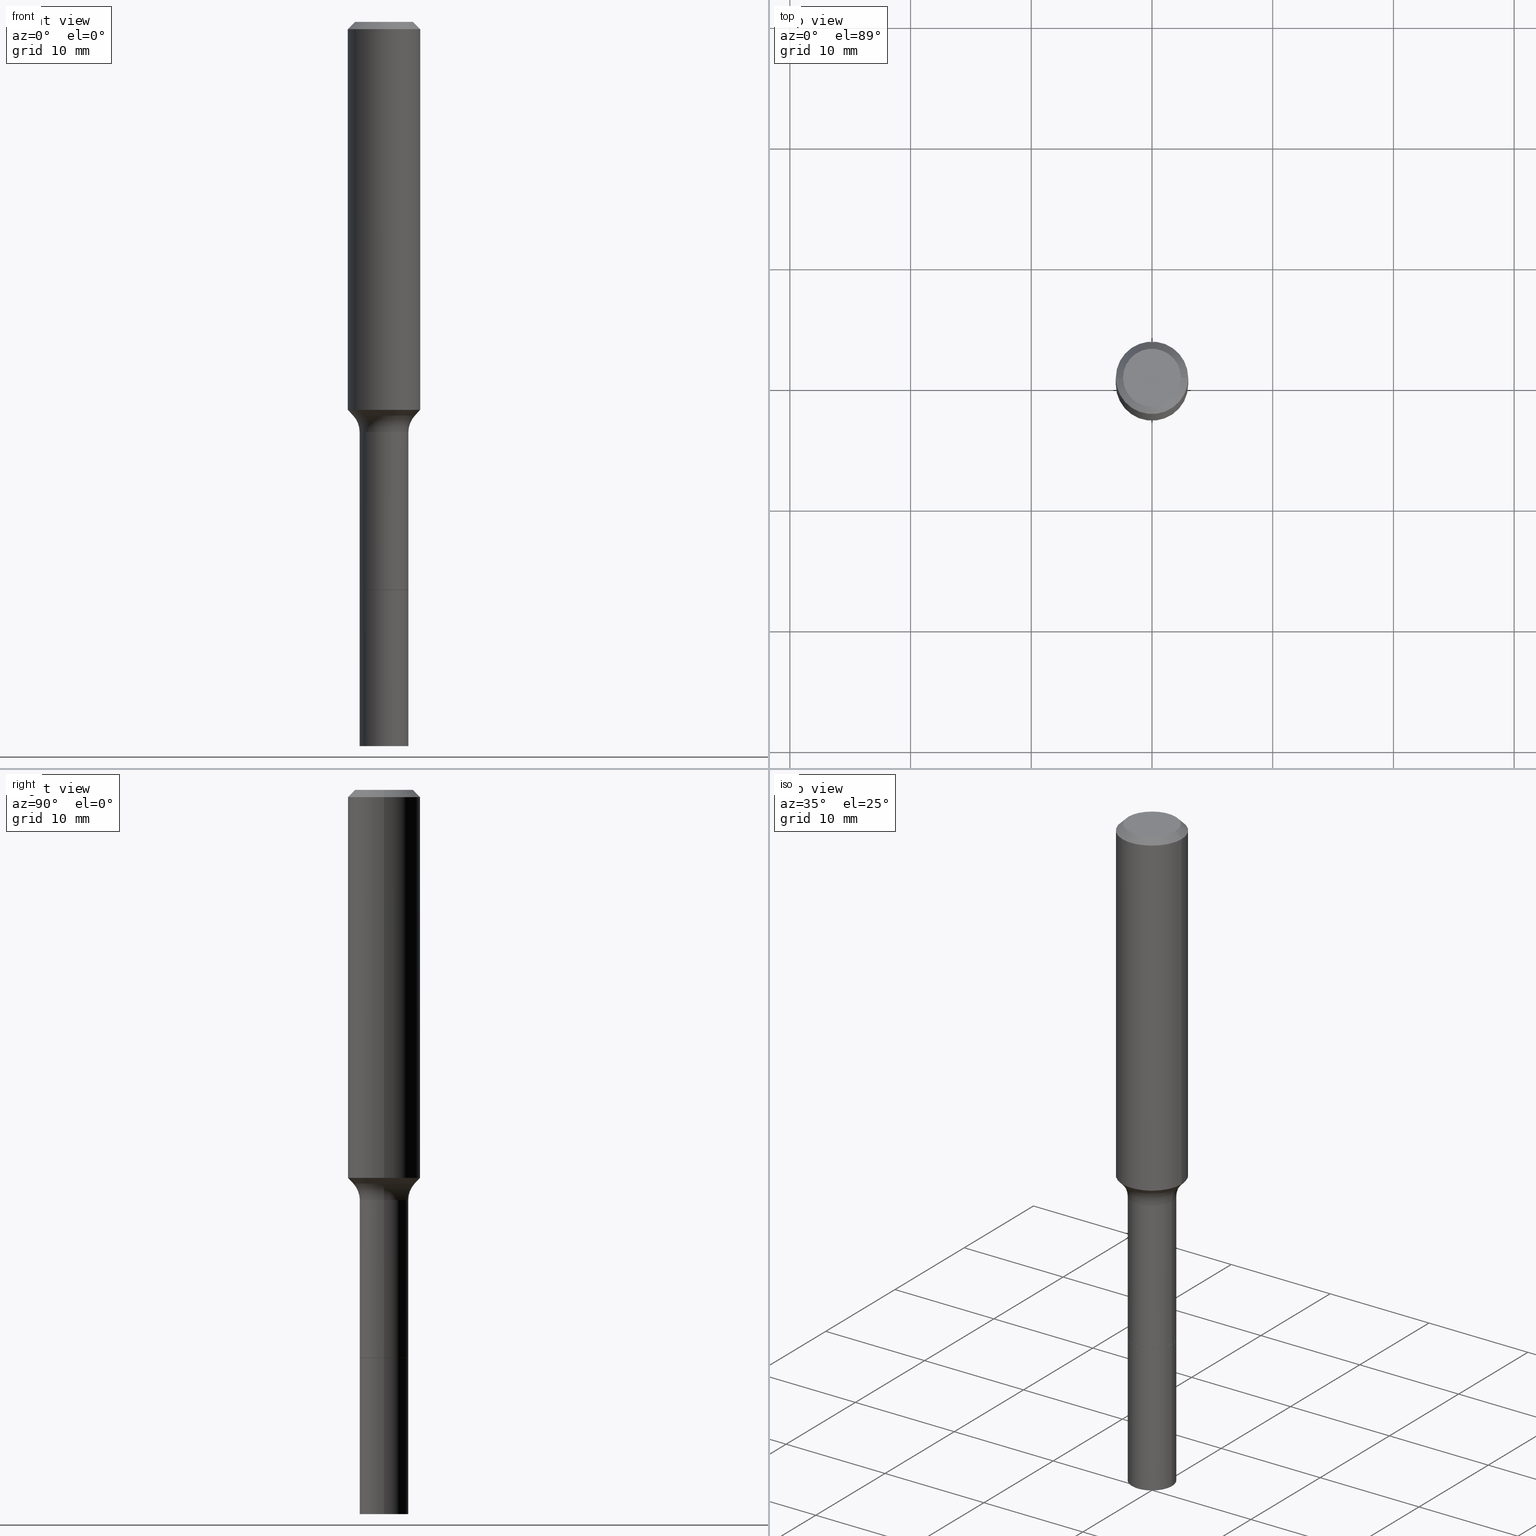
[diagram: canonical four-view strip — front | top / right | iso, engineering-drawing reading convention]
A machine part, canonical four-view strip (front | top / right | iso — engineering-drawing reading convention). The complete STEP part file that produces these views, byte-faithful:
ISO-10303-21;
HEADER;
FILE_DESCRIPTION (( 'STEP AP203' ),
    '1' );
FILE_NAME ('58809.STEP',
    '2025-04-01T15:25:06',
    ( '' ),
    ( '' ),
    'SwSTEP 2.0',
    'SolidWorks 2024',
    '' );
FILE_SCHEMA (( 'CONFIG_CONTROL_DESIGN' ));
ENDSEC;

DATA;
#1 = CARTESIAN_POINT ( 'NONE',  ( -0.07900000000000000078, -5.902943747380684142E-15, -1.852200000000000069 ) ) ;
#2 = EDGE_CURVE ( 'NONE', #471, #511, #509, .T. ) ;
#3 = DIRECTION ( 'NONE',  ( -2.445468806185136597E-29, 3.491481338843145583E-15, 1.000000000000000000 ) ) ;
#4 = SECURITY_CLASSIFICATION ( '', '', #297 ) ;
#5 = CIRCLE ( 'NONE', #202, 0.07950000000000000122 ) ;
#6 = DIRECTION ( 'NONE',  ( -2.445468806185136597E-29, 3.491481338843145583E-15, 1.000000000000000000 ) ) ;
#7 = EDGE_CURVE ( 'NONE', #187, #479, #465, .T. ) ;
#8 = DIRECTION ( 'NONE',  ( -1.000000000000000000, 7.105427357601001859E-15, 0.000000000000000000 ) ) ;
#9 = CARTESIAN_POINT ( 'NONE',  ( 0.07950000000000000122, -7.022067268681332845E-15, -1.852200000000000069 ) ) ;
#10 = DIRECTION ( 'NONE',  ( -2.445468806185136597E-29, 3.491481338843145583E-15, 1.000000000000000000 ) ) ;
#11 = PERSON_AND_ORGANIZATION ( #500, #110 ) ;
#12 = DIRECTION ( 'NONE',  ( 1.000000000000000000, -6.982962677686270655E-15, 0.000000000000000000 ) ) ;
#13 = CARTESIAN_POINT ( 'NONE',  ( 3.272526356436949336E-29, -4.672300327639896745E-15, -1.338200000000000056 ) ) ;
#14 = APPROVAL_DATE_TIME ( #53, #148 ) ;
#15 = AXIS2_PLACEMENT_3D ( 'NONE', #123, #3, #165 ) ;
#16 = AXIS2_PLACEMENT_3D ( 'NONE', #478, #122, #83 ) ;
#17 = LINE ( 'NONE', #455, #264 ) ;
#18 = EDGE_LOOP ( 'NONE', ( #112, #318, #60, #378 ) ) ;
#19 = CC_DESIGN_PERSON_AND_ORGANIZATION_ASSIGNMENT ( #254, #93, ( #77 ) ) ;
#20 = ORIENTED_EDGE ( 'NONE', *, *, #262, .T. ) ;
#21 = AXIS2_PLACEMENT_3D ( 'NONE', #399, #42, #402 ) ;
#22 = CIRCLE ( 'NONE', #425, 0.07950000000000000122 ) ;
#23 = DIRECTION ( 'NONE',  ( 0.000000000000000000, 0.000000000000000000, 1.000000000000000000 ) ) ;
#24 = VERTEX_POINT ( 'NONE', #9 ) ;
#25 = ADVANCED_FACE ( 'NONE', ( #130 ), #396, .T. ) ;
#26 = DIRECTION ( 'NONE',  ( -2.445468806185136597E-29, 3.491481338843145583E-15, 1.000000000000000000 ) ) ;
#27 = CALENDAR_DATE ( 2025, 1, 4 ) ;
#28 = CARTESIAN_POINT ( 'NONE',  ( 0.1180999999999999966, -9.071566814582237199E-16, -0.02362000000000014435 ) ) ;
#29 = ORIENTED_EDGE ( 'NONE', *, *, #388, .T. ) ;
#30 = CARTESIAN_POINT ( 'NONE',  ( 3.772893820736570314E-46, -5.386692455541008845E-32, -1.542810037565835988E-17 ) ) ;
#31 = AXIS2_PLACEMENT_3D ( 'NONE', #472, #71, #116 ) ;
#32 = ORIENTED_EDGE ( 'NONE', *, *, #388, .F. ) ;
#33 = CYLINDRICAL_SURFACE ( 'NONE', #319, 0.07950000000000007061 ) ;
#34 = APPROVAL_PERSON_ORGANIZATION ( #451, #164, #446 ) ;
#35 = ADVANCED_FACE ( 'NONE', ( #43 ), #88, .T. ) ;
#36 = ORIENTED_EDGE ( 'NONE', *, *, #189, .T. ) ;
#37 = ORIENTED_EDGE ( 'NONE', *, *, #98, .F. ) ;
#38 = CYLINDRICAL_SURFACE ( 'NONE', #66, 0.1181000000000000660 ) ;
#39 = VERTEX_POINT ( 'NONE', #1 ) ;
#40 = DIRECTION ( 'NONE',  ( 1.000000000000000000, -6.982962677686254089E-15, 0.000000000000000000 ) ) ;
#41 = ADVANCED_FACE ( 'NONE', ( #251 ), #514, .T. ) ;
#42 = DIRECTION ( 'NONE',  ( -2.438088387897960049E-29, 3.491481338843145188E-15, 1.000000000000000000 ) ) ;
#43 = FACE_OUTER_BOUND ( 'NONE', #456, .T. ) ;
#44 = ADVANCED_FACE ( 'NONE', ( #167 ), #287, .F. ) ;
#45 = FACE_OUTER_BOUND ( 'NONE', #18, .T. ) ;
#46 = CIRCLE ( 'NONE', #243, 0.1180999999999999966 ) ;
#47 = AXIS2_PLACEMENT_3D ( 'NONE', #453, #220, #336 ) ;
#48 = DIRECTION ( 'NONE',  ( 1.000000000000000000, -6.982962677686267499E-15, 4.876176775795936353E-29 ) ) ;
#49 = MANIFOLD_SOLID_BREP ( 'Body-Move/Copy2[1]', #489 ) ;
#50 = DIRECTION ( 'NONE',  ( -1.000000000000000000, 6.982962677686266711E-15, 0.000000000000000000 ) ) ;
#51 = CALENDAR_DATE ( 2025, 1, 4 ) ;
#52 = DIRECTION ( 'NONE',  ( -6.982962677686266711E-15, -1.000000000000000000, 3.491481338843145583E-15 ) ) ;
#53 = DATE_AND_TIME ( #292, #365 ) ;
#54 = CARTESIAN_POINT ( 'NONE',  ( -0.07950000000000007061, -5.902040260875994445E-15, -1.852200000000000069 ) ) ;
#55 = ADVANCED_FACE ( 'NONE', ( #45 ), #208, .T. ) ;
#56 = AXIS2_PLACEMENT_3D ( 'NONE', #288, #172, #95 ) ;
#57 = APPLICATION_CONTEXT ( 'configuration controlled 3d designs of mechanical parts and assemblies' ) ;
#58 = AXIS2_PLACEMENT_3D ( 'NONE', #216, #298, #256 ) ;
#59 = DIRECTION ( 'NONE',  ( 1.000000000000000000, -6.982962677686264344E-15, 0.000000000000000000 ) ) ;
#60 = ORIENTED_EDGE ( 'NONE', *, *, #179, .T. ) ;
#61 = ADVANCED_FACE ( 'NONE', ( #370 ), #163, .T. ) ;
#62 = PRODUCT_DEFINITION ( 'UNKNOWN', '', #77, #72 ) ;
#63 = PERSON_AND_ORGANIZATION ( #500, #110 ) ;
#64 = CARTESIAN_POINT ( 'NONE',  ( 4.529497322816109909E-29, -6.466921735805274989E-15, -1.852200000000000069 ) ) ;
#65 = AXIS2_PLACEMENT_3D ( 'NONE', #364, #6, #335 ) ;
#66 = AXIS2_PLACEMENT_3D ( 'NONE', #199, #515, #161 ) ;
#67 =( NAMED_UNIT ( * ) SI_UNIT ( $, .STERADIAN. ) SOLID_ANGLE_UNIT ( ) );
#68 = ORIENTED_EDGE ( 'NONE', *, *, #81, .T. ) ;
#69 = CARTESIAN_POINT ( 'NONE',  ( 5.776686413970529753E-29, -8.247577218615279626E-15, -2.362200000000000077 ) ) ;
#70 = EDGE_LOOP ( 'NONE', ( #517, #340, #513, #315 ) ) ;
#71 = DIRECTION ( 'NONE',  ( -2.445468806185136597E-29, 3.491481338843145583E-15, 1.000000000000000000 ) ) ;
#72 = DESIGN_CONTEXT ( 'detailed design', #57, 'design' ) ;
#73 = VERTEX_POINT ( 'NONE', #441 ) ;
#74 = DIRECTION ( 'NONE',  ( -2.445468806185136597E-29, 3.491481338843145583E-15, 1.000000000000000000 ) ) ;
#75 = EDGE_CURVE ( 'NONE', #421, #384, #158, .T. ) ;
#76 = ORIENTED_EDGE ( 'NONE', *, *, #196, .F. ) ;
#77 = PRODUCT_DEFINITION_FORMATION_WITH_SPECIFIED_SOURCE ( 'ANY', '', #375, .NOT_KNOWN. ) ;
#78 = CARTESIAN_POINT ( 'NONE',  ( 0.07950000000000000122, -7.020321528011911342E-15, -1.851700000000000124 ) ) ;
#79 = ORIENTED_EDGE ( 'NONE', *, *, #410, .F. ) ;
#80 = FACE_OUTER_BOUND ( 'NONE', #283, .T. ) ;
#81 = EDGE_CURVE ( 'NONE', #305, #238, #46, .T. ) ;
#82 = VERTEX_POINT ( 'NONE', #90 ) ;
#83 = DIRECTION ( 'NONE',  ( 1.000000000000000000, -6.982962677686267499E-15, 4.876176775795936353E-29 ) ) ;
#84 = DIRECTION ( 'NONE',  ( -2.445468806185136597E-29, 3.491481338843145583E-15, 1.000000000000000000 ) ) ;
#85 = AXIS2_PLACEMENT_3D ( 'NONE', #146, #430, #108 ) ;
#86 = DIRECTION ( 'NONE',  ( -2.445468806185136597E-29, 3.491481338843145583E-15, 1.000000000000000000 ) ) ;
#87 = APPLICATION_CONTEXT ( 'configuration controlled 3d designs of mechanical parts and assemblies' ) ;
#88 = CYLINDRICAL_SURFACE ( 'NONE', #250, 0.07950000000000007061 ) ;
#89 = EDGE_CURVE ( 'NONE', #238, #305, #404, .T. ) ;
#90 = CARTESIAN_POINT ( 'NONE',  ( -0.09447999999999998066, 7.009847083995354710E-16, -3.085620075132147757E-17 ) ) ;
#91 = DIRECTION ( 'NONE',  ( -2.445468806185136597E-29, 3.491481338843145583E-15, 1.000000000000000000 ) ) ;
#92 = AXIS2_PLACEMENT_3D ( 'NONE', #30, #387, #463 ) ;
#93 = PERSON_AND_ORGANIZATION_ROLE ( 'creator' ) ;
#94 = AXIS2_PLACEMENT_3D ( 'NONE', #368, #91, #213 ) ;
#95 = DIRECTION ( 'NONE',  ( 1.000000000000000000, -6.982962677686266711E-15, 0.000000000000000000 ) ) ;
#96 = DIRECTION ( 'NONE',  ( 1.000000000000000000, -6.982962677686272233E-15, 0.000000000000000000 ) ) ;
#97 = SHAPE_DEFINITION_REPRESENTATION ( #178, #277 ) ;
#98 = EDGE_CURVE ( 'NONE', #73, #39, #439, .T. ) ;
#99 = CARTESIAN_POINT ( 'NONE',  ( 3.094236346750236032E-29, -4.417749445555900568E-15, -1.265293729743851792 ) ) ;
#100 = LENGTH_MEASURE_WITH_UNIT ( LENGTH_MEASURE( 0.02539999999999999897 ), #258 );
#101 = ORIENTED_EDGE ( 'NONE', *, *, #222, .F. ) ;
#102 = CC_DESIGN_SECURITY_CLASSIFICATION ( #4, ( #77 ) ) ;
#103 = CARTESIAN_POINT ( 'NONE',  ( 0.1180999999999999966, -8.926936027602933910E-16, -0.02362000000000014435 ) ) ;
#104 = EDGE_CURVE ( 'NONE', #421, #426, #409, .T. ) ;
#105 = CALENDAR_DATE ( 2025, 1, 4 ) ;
#106 = LINE ( 'NONE', #467, #505 ) ;
#107 = ORIENTED_EDGE ( 'NONE', *, *, #89, .F. ) ;
#108 = DIRECTION ( 'NONE',  ( -1.000000000000000000, 6.982962677686265922E-15, -4.876176775795935793E-29 ) ) ;
#109 = AXIS2_PLACEMENT_3D ( 'NONE', #367, #400, #12 ) ;
#110 = ORGANIZATION ( 'UNSPECIFIED', 'UNSPECIFIED', '' ) ;
#111 = DIRECTION ( 'NONE',  ( 1.000000000000000000, -6.982962677686270655E-15, 0.000000000000000000 ) ) ;
#112 = ORIENTED_EDGE ( 'NONE', *, *, #2, .F. ) ;
#113 = EDGE_CURVE ( 'NONE', #384, #435, #117, .T. ) ;
#114 = CARTESIAN_POINT ( 'NONE',  ( 0.1181000000000000660, -8.246878922347485584E-16, 5.758764772215003944E-30 ) ) ;
#115 = ORIENTED_EDGE ( 'NONE', *, *, #473, .F. ) ;
#116 = DIRECTION ( 'NONE',  ( 1.000000000000000000, -6.982962677686270655E-15, 0.000000000000000000 ) ) ;
#117 = CIRCLE ( 'NONE', #423, 0.07999999999999996003 ) ;
#118 = ORIENTED_EDGE ( 'NONE', *, *, #262, .F. ) ;
#119 = DIRECTION ( 'NONE',  ( 1.000000000000000000, -6.982962677686271444E-15, 0.000000000000000000 ) ) ;
#120 = EDGE_CURVE ( 'NONE', #39, #73, #218, .T. ) ;
#121 = EDGE_LOOP ( 'NONE', ( #323, #394, #68, #118 ) ) ;
#122 = DIRECTION ( 'NONE',  ( -2.445468806185136597E-29, 3.491481338843145583E-15, 1.000000000000000000 ) ) ;
#123 = CARTESIAN_POINT ( 'NONE',  ( 4.529497322816109909E-29, -6.466921735805274989E-15, -1.852200000000000069 ) ) ;
#124 = DIRECTION ( 'NONE',  ( 1.000000000000000000, -6.982962677686266711E-15, 4.876176775795936353E-29 ) ) ;
#125 = APPROVAL_PERSON_ORGANIZATION ( #369, #148, #257 ) ;
#126 = DIRECTION ( 'NONE',  ( -2.445468806185136877E-29, 3.491481338843145188E-15, 1.000000000000000000 ) ) ;
#127 = EDGE_CURVE ( 'NONE', #73, #240, #291, .T. ) ;
#128 = CARTESIAN_POINT ( 'NONE',  ( 0.1594999999999999196, -5.786082874730855465E-15, -1.338200000000000056 ) ) ;
#129 = DIRECTION ( 'NONE',  ( 1.000000000000000000, -6.982962677686272233E-15, 0.000000000000000000 ) ) ;
#130 = FACE_OUTER_BOUND ( 'NONE', #121, .T. ) ;
#131 = DIRECTION ( 'NONE',  ( -2.445468806185136877E-29, 3.491481338843145188E-15, 1.000000000000000000 ) ) ;
#132 = PERSON_AND_ORGANIZATION ( #500, #110 ) ;
#133 = CIRCLE ( 'NONE', #184, 0.07950000000000014000 ) ;
#134 = ADVANCED_FACE ( 'NONE', ( #331 ), #350, .F. ) ;
#135 = FACE_OUTER_BOUND ( 'NONE', #70, .T. ) ;
#136 = DATE_TIME_ROLE ( 'creation_date' ) ;
#137 = CARTESIAN_POINT ( 'NONE',  ( 4.528274588413018229E-29, -6.465175995135853485E-15, -1.851700000000000124 ) ) ;
#138 = EDGE_LOOP ( 'NONE', ( #37, #477 ) ) ;
#139 = CARTESIAN_POINT ( 'NONE',  ( 3.272526356436949336E-29, -4.672300327639896745E-15, -1.338200000000000056 ) ) ;
#140 = CIRCLE ( 'NONE', #94, 0.07950000000000000122 ) ;
#141 = APPROVAL_DATE_TIME ( #186, #512 ) ;
#142 = ORIENTED_EDGE ( 'NONE', *, *, #196, .T. ) ;
#143 = LINE ( 'NONE', #424, #200 ) ;
#144 = MECHANICAL_CONTEXT ( 'NONE', #87, 'mechanical' ) ;
#145 = EDGE_LOOP ( 'NONE', ( #393, #284, #436, #101 ) ) ;
#146 = CARTESIAN_POINT ( 'NONE',  ( 4.529497322816109909E-29, -6.466921735805274989E-15, -1.852200000000000069 ) ) ;
#147 = CARTESIAN_POINT ( 'NONE',  ( -0.07950000000000000122, -6.792368002280996764E-15, -1.852200000000000069 ) ) ;
#148 = APPROVAL ( #329, 'UNSPECIFIED' ) ;
#149 = AXIS2_PLACEMENT_3D ( 'NONE', #499, #156, #119 ) ;
#150 = ORIENTED_EDGE ( 'NONE', *, *, #290, .F. ) ;
#151 = FACE_OUTER_BOUND ( 'NONE', #145, .T. ) ;
#152 = CARTESIAN_POINT ( 'NONE',  ( -0.07949999999999995959, 5.648814749292793606E-16, -3.910553396752648025E-30 ) ) ;
#153 = CARTESIAN_POINT ( 'NONE',  ( 0.1181000000000001493, -5.242437337790650408E-15, -1.265293729743851792 ) ) ;
#154 = DIRECTION ( 'NONE',  ( 1.000000000000000000, -6.982962677686269077E-15, 4.883557194083114022E-29 ) ) ;
#155 = ORIENTED_EDGE ( 'NONE', *, *, #206, .T. ) ;
#156 = DIRECTION ( 'NONE',  ( -2.445468806185136597E-29, 3.491481338843145583E-15, 1.000000000000000000 ) ) ;
#157 = ADVANCED_FACE ( 'NONE', ( #327 ), #204, .F. ) ;
#158 = CIRCLE ( 'NONE', #109, 0.1009917038704663955 ) ;
#159 = ORIENTED_EDGE ( 'NONE', *, *, #290, .T. ) ;
#160 = CIRCLE ( 'NONE', #320, 0.09447999999999998066 ) ;
#161 = DIRECTION ( 'NONE',  ( 1.000000000000000000, -6.982962677686266711E-15, 4.876176775795936353E-29 ) ) ;
#162 = EDGE_LOOP ( 'NONE', ( #357, #185, #142, #107 ) ) ;
#163 = CYLINDRICAL_SURFACE ( 'NONE', #482, 0.1181000000000000660 ) ;
#164 = APPROVAL ( #412, 'UNSPECIFIED' ) ;
#165 = DIRECTION ( 'NONE',  ( 1.000000000000000000, -6.982962677686271444E-15, 0.000000000000000000 ) ) ;
#166 = CONICAL_SURFACE ( 'NONE', #282, 0.1009917038704663955, 0.7504915783575621946 ) ;
#167 = FACE_OUTER_BOUND ( 'NONE', #138, .T. ) ;
#168 = DIRECTION ( 'NONE',  ( 1.000000000000000000, -6.982962677686267499E-15, 4.875432709231658792E-29 ) ) ;
#169 = DATE_TIME_ROLE ( 'classification_date' ) ;
#170 = CARTESIAN_POINT ( 'NONE',  ( 5.776686413970529753E-29, -8.247577218615279626E-15, -2.362200000000000077 ) ) ;
#171 = DIRECTION ( 'NONE',  ( 1.000000000000000000, -6.982962677686265922E-15, 0.000000000000000000 ) ) ;
#172 = DIRECTION ( 'NONE',  ( -2.445468806185136597E-29, 3.491481338843145583E-15, 1.000000000000000000 ) ) ;
#173 = DIRECTION ( 'NONE',  ( 0.7071067811865460184, -7.319954787623251312E-15, -0.7071067811865490160 ) ) ;
#174 = CALENDAR_DATE ( 2025, 1, 4 ) ;
#175 = CIRCLE ( 'NONE', #47, 0.1181000000000001493 ) ;
#176 = DIRECTION ( 'NONE',  ( -2.445468806185136597E-29, 3.491481338843145583E-15, 1.000000000000000000 ) ) ;
#177 = ORIENTED_EDGE ( 'NONE', *, *, #75, .F. ) ;
#178 = PRODUCT_DEFINITION_SHAPE ( 'NONE', 'NONE',  #62 ) ;
#179 = EDGE_CURVE ( 'NONE', #240, #435, #143, .T. ) ;
#180 = DIRECTION ( 'NONE',  ( 1.000000000000000000, 0.000000000000000000, 0.000000000000000000 ) ) ;
#181 = ORIENTED_EDGE ( 'NONE', *, *, #464, .T. ) ;
#182 = VECTOR ( 'NONE', #126, 39.37007874015748143 ) ;
#183 = DIRECTION ( 'NONE',  ( 1.000000000000000000, -6.982962677686267499E-15, 4.875432709231658792E-29 ) ) ;
#184 = AXIS2_PLACEMENT_3D ( 'NONE', #242, #395, #40 ) ;
#185 = ORIENTED_EDGE ( 'NONE', *, *, #493, .T. ) ;
#186 = DATE_AND_TIME ( #27, #397 ) ;
#187 = VERTEX_POINT ( 'NONE', #346 ) ;
#188 = LINE ( 'NONE', #502, #260 ) ;
#189 = EDGE_CURVE ( 'NONE', #24, #309, #358, .T. ) ;
#190 = ORIENTED_EDGE ( 'NONE', *, *, #222, .T. ) ;
#191 = DIRECTION ( 'NONE',  ( -2.445468806185136877E-29, 3.491481338843145188E-15, 1.000000000000000000 ) ) ;
#192 = CLOSED_SHELL ( 'NONE', ( #503, #25, #344, #300, #316, #363, #55, #134, #41, #61, #427, #157, #44, #330 ) ) ;
#193 = AXIS2_PLACEMENT_3D ( 'NONE', #209, #452, #50 ) ;
#194 = ORIENTED_EDGE ( 'NONE', *, *, #127, .T. ) ;
#195 = DIRECTION ( 'NONE',  ( 1.000000000000000000, -6.982962677686265922E-15, 0.000000000000000000 ) ) ;
#196 = EDGE_CURVE ( 'NONE', #270, #305, #276, .T. ) ;
#197 = ORIENTED_EDGE ( 'NONE', *, *, #480, .T. ) ;
#198 = ORIENTED_EDGE ( 'NONE', *, *, #113, .T. ) ;
#199 = CARTESIAN_POINT ( 'NONE',  ( 0.000000000000000000, 0.000000000000000000, 0.000000000000000000 ) ) ;
#200 = VECTOR ( 'NONE', #191, 39.37007874015748143 ) ;
#201 = ORIENTED_EDGE ( 'NONE', *, *, #104, .F. ) ;
#202 = AXIS2_PLACEMENT_3D ( 'NONE', #341, #10, #171 ) ;
#203 = CYLINDRICAL_SURFACE ( 'NONE', #16, 0.07949999999999995959 ) ;
#204 = PLANE ( 'NONE',  #92 ) ;
#205 = CARTESIAN_POINT ( 'NONE',  ( 4.529497322816109909E-29, -6.466921735805274989E-15, -1.852200000000000069 ) ) ;
#206 = EDGE_CURVE ( 'NONE', #426, #238, #460, .T. ) ;
#207 = DIRECTION ( 'NONE',  ( -2.445468806185136597E-29, 3.491481338843145583E-15, 1.000000000000000000 ) ) ;
#208 = CYLINDRICAL_SURFACE ( 'NONE', #271, 0.07949999999999995959 ) ;
#209 = CARTESIAN_POINT ( 'NONE',  ( 5.776197320209328408E-31, -8.246878922347560526E-17, -0.02362000000000014435 ) ) ;
#210 = CC_DESIGN_APPROVAL ( #164, ( #4 ) ) ;
#211 = DIRECTION ( 'NONE',  ( 1.000000000000000000, -6.982962677686254089E-15, 0.000000000000000000 ) ) ;
#212 = ADVANCED_FACE ( 'NONE', ( #428 ), #390, .F. ) ;
#213 = DIRECTION ( 'NONE',  ( 1.000000000000000000, -6.982962677686265922E-15, 0.000000000000000000 ) ) ;
#214 = DATE_AND_TIME ( #51, #417 ) ;
#215 = DIRECTION ( 'NONE',  ( -2.445468806185136597E-29, 3.491481338843145583E-15, 1.000000000000000000 ) ) ;
#216 = CARTESIAN_POINT ( 'NONE',  ( 4.529497322816109909E-29, -6.466921735805274989E-15, -1.852200000000000069 ) ) ;
#217 = PERSON_AND_ORGANIZATION_ROLE ( 'classification_officer' ) ;
#218 = CIRCLE ( 'NONE', #15, 0.07900000000000000078 ) ;
#219 = AXIS2_PLACEMENT_3D ( 'NONE', #99, #176, #59 ) ;
#220 = DIRECTION ( 'NONE',  ( -2.445468806185136597E-29, 3.491481338843145583E-15, 1.000000000000000000 ) ) ;
#221 = EDGE_LOOP ( 'NONE', ( #177, #29, #232, #360 ) ) ;
#222 = EDGE_CURVE ( 'NONE', #479, #24, #106, .T. ) ;
#223 = PERSON_AND_ORGANIZATION_ROLE ( 'creator' ) ;
#224 = ORIENTED_EDGE ( 'NONE', *, *, #401, .T. ) ;
#225 = AXIS2_PLACEMENT_3D ( 'NONE', #170, #86, #211 ) ;
#226 = DIRECTION ( 'NONE',  ( -0.7071067811866199593, 7.493145998870616062E-15, 0.7071067811864750752 ) ) ;
#227 =( GEOMETRIC_REPRESENTATION_CONTEXT ( 3 ) GLOBAL_UNCERTAINTY_ASSIGNED_CONTEXT ( ( #285 ) ) GLOBAL_UNIT_ASSIGNED_CONTEXT ( ( #374, #403, #67 ) ) REPRESENTATION_CONTEXT ( 'NONE', 'WORKASPACE' ) );
#228 = PERSON_AND_ORGANIZATION ( #500, #110 ) ;
#229 = ORIENTED_EDGE ( 'NONE', *, *, #377, .F. ) ;
#230 = ADVANCED_FACE ( 'NONE', ( #151 ), #33, .T. ) ;
#231 = DIRECTION ( 'NONE',  ( -1.000000000000000000, 6.982962677686265922E-15, -4.876176775795935793E-29 ) ) ;
#232 = ORIENTED_EDGE ( 'NONE', *, *, #518, .T. ) ;
#233 = DIRECTION ( 'NONE',  ( -2.445468806185136597E-29, 3.491481338843145583E-15, 1.000000000000000000 ) ) ;
#234 = EDGE_LOOP ( 'NONE', ( #115, #389, #20, #466 ) ) ;
#235 = CARTESIAN_POINT ( 'NONE',  ( -0.1181000000000000660, 8.391509709326787887E-16, -5.809262341591047287E-30 ) ) ;
#236 = CC_DESIGN_APPROVAL ( #148, ( #77 ) ) ;
#237 = VECTOR ( 'NONE', #131, 39.37007874015748143 ) ;
#238 = VERTEX_POINT ( 'NONE', #355 ) ;
#239 = DIMENSIONAL_EXPONENTS ( 1.000000000000000000, 0.000000000000000000, 0.000000000000000000, 0.000000000000000000, 0.000000000000000000, 0.000000000000000000, 0.000000000000000000 ) ;
#240 = VERTEX_POINT ( 'NONE', #78 ) ;
#241 = EDGE_LOOP ( 'NONE', ( #307, #416, #194, #278 ) ) ;
#242 = CARTESIAN_POINT ( 'NONE',  ( 5.776686413970529753E-29, -8.247577218615279626E-15, -2.362200000000000077 ) ) ;
#243 = AXIS2_PLACEMENT_3D ( 'NONE', #438, #84, #361 ) ;
#244 = DIRECTION ( 'NONE',  ( 1.000000000000000000, -6.982962677686270655E-15, 0.000000000000000000 ) ) ;
#245 = AXIS2_PLACEMENT_3D ( 'NONE', #351, #392, #183 ) ;
#246 = CC_DESIGN_DATE_AND_TIME_ASSIGNMENT ( #267, #136, ( #62 ) ) ;
#247 = DIRECTION ( 'NONE',  ( 1.000000000000000000, -6.982962677686262766E-15, 0.000000000000000000 ) ) ;
#248 = CARTESIAN_POINT ( 'NONE',  ( 3.139101899204769565E-29, -4.481805563857510262E-15, -1.283640131195000089 ) ) ;
#249 = CC_DESIGN_PERSON_AND_ORGANIZATION_ASSIGNMENT ( #132, #372, ( #77 ) ) ;
#250 = AXIS2_PLACEMENT_3D ( 'NONE', #205, #255, #294 ) ;
#251 = FACE_OUTER_BOUND ( 'NONE', #386, .T. ) ;
#252 = CARTESIAN_POINT ( 'NONE',  ( -0.1594999999999999196, -3.538984664102537914E-15, -1.338200000000000056 ) ) ;
#253 = AXIS2_PLACEMENT_3D ( 'NONE', #252, #259, #8 ) ;
#254 = PERSON_AND_ORGANIZATION ( #500, #110 ) ;
#255 = DIRECTION ( 'NONE',  ( -2.445468806185136597E-29, 3.491481338843145583E-15, 1.000000000000000000 ) ) ;
#256 = DIRECTION ( 'NONE',  ( 1.000000000000000000, -6.982962677686271444E-15, 0.000000000000000000 ) ) ;
#257 = APPROVAL_ROLE ( '' ) ;
#258 =( LENGTH_UNIT ( ) NAMED_UNIT ( * ) SI_UNIT ( $, .METRE. ) );
#259 = DIRECTION ( 'NONE',  ( 7.105427357601001859E-15, 1.000000000000000000, -3.491481338843145583E-15 ) ) ;
#260 = VECTOR ( 'NONE', #510, 39.37007874015748143 ) ;
#261 = ORIENTED_EDGE ( 'NONE', *, *, #420, .F. ) ;
#262 = EDGE_CURVE ( 'NONE', #82, #238, #188, .T. ) ;
#263 = CC_DESIGN_DATE_AND_TIME_ASSIGNMENT ( #214, #169, ( #4 ) ) ;
#264 = VECTOR ( 'NONE', #301, 39.37007874015748143 ) ;
#265 = APPROVAL_ROLE ( '' ) ;
#266 = ORIENTED_EDGE ( 'NONE', *, *, #434, .F. ) ;
#267 = DATE_AND_TIME ( #105, #406 ) ;
#268 = DIRECTION ( 'NONE',  ( -2.445468806185136877E-29, 3.491481338843145188E-15, 1.000000000000000000 ) ) ;
#269 = APPROVAL_STATUS ( 'not_yet_approved' ) ;
#270 = VERTEX_POINT ( 'NONE', #153 ) ;
#271 = AXIS2_PLACEMENT_3D ( 'NONE', #444, #215, #48 ) ;
#272 = AXIS2_PLACEMENT_3D ( 'NONE', #139, #376, #129 ) ;
#273 = EDGE_LOOP ( 'NONE', ( #36, #413 ) ) ;
#274 = CARTESIAN_POINT ( 'NONE',  ( -0.07900000000000000078, -5.905592974554795343E-15, -1.852200000000000069 ) ) ;
#275 = ORIENTED_EDGE ( 'NONE', *, *, #420, .T. ) ;
#276 = LINE ( 'NONE', #114, #334 ) ;
#277 = ADVANCED_BREP_SHAPE_REPRESENTATION ( '58809', ( #49, #398, #440 ), #227 ) ;
#278 = ORIENTED_EDGE ( 'NONE', *, *, #442, .F. ) ;
#279 = FACE_OUTER_BOUND ( 'NONE', #221, .T. ) ;
#280 = VECTOR ( 'NONE', #483, 39.37007874015748143 ) ;
#281 = ADVANCED_FACE ( 'NONE', ( #314 ), #504, .T. ) ;
#282 = AXIS2_PLACEMENT_3D ( 'NONE', #381, #26, #111 ) ;
#283 = EDGE_LOOP ( 'NONE', ( #181, #155, #429, #76 ) ) ;
#284 = ORIENTED_EDGE ( 'NONE', *, *, #410, .T. ) ;
#285 = UNCERTAINTY_MEASURE_WITH_UNIT (LENGTH_MEASURE( 1.000000000000000082E-05 ), #374, 'distance_accuracy_value', 'NONE');
#286 = EDGE_CURVE ( 'NONE', #39, #471, #385, .T. ) ;
#287 = PLANE ( 'NONE',  #21 ) ;
#288 = CARTESIAN_POINT ( 'NONE',  ( 5.776197320209328408E-31, -8.246878922347560526E-17, -0.02362000000000014435 ) ) ;
#289 = DIRECTION ( 'NONE',  ( 2.445468806185136597E-29, -3.491481338843145583E-15, -1.000000000000000000 ) ) ;
#290 = EDGE_CURVE ( 'NONE', #384, #421, #447, .T. ) ;
#291 = LINE ( 'NONE', #325, #280 ) ;
#292 = CALENDAR_DATE ( 2025, 1, 4 ) ;
#293 = VECTOR ( 'NONE', #362, 39.37007874015748143 ) ;
#294 = DIRECTION ( 'NONE',  ( 1.000000000000000000, -6.982962677686272233E-15, 0.000000000000000000 ) ) ;
#295 = CARTESIAN_POINT ( 'NONE',  ( 7.545787641473140628E-46, -1.077338491108201769E-31, -3.085620075131671975E-17 ) ) ;
#296 = AXIS2_PLACEMENT_3D ( 'NONE', #13, #494, #96 ) ;
#297 = SECURITY_CLASSIFICATION_LEVEL ( 'unclassified' ) ;
#298 = DIRECTION ( 'NONE',  ( -2.445468806185136597E-29, 3.491481338843145583E-15, 1.000000000000000000 ) ) ;
#299 = COORDINATED_UNIVERSAL_TIME_OFFSET ( 5, 0, .BEHIND. ) ;
#300 = ADVANCED_FACE ( 'NONE', ( #470 ), #166, .T. ) ;
#301 = DIRECTION ( 'NONE',  ( 0.6819983600624988096, -2.208861293262478564E-15, 0.7313537016191701268 ) ) ;
#302 = DIRECTION ( 'NONE',  ( -2.445468806185136597E-29, 3.491481338843145583E-15, 1.000000000000000000 ) ) ;
#303 = DIRECTION ( 'NONE',  ( -2.445468806185136597E-29, 3.491481338843145583E-15, 1.000000000000000000 ) ) ;
#304 = APPLICATION_PROTOCOL_DEFINITION ( 'international standard', 'config_control_design', 1994, #87 ) ;
#305 = VERTEX_POINT ( 'NONE', #28 ) ;
#306 = DIRECTION ( 'NONE',  ( -2.445468806185136877E-29, 3.491481338843145188E-15, 1.000000000000000000 ) ) ;
#307 = ORIENTED_EDGE ( 'NONE', *, *, #286, .F. ) ;
#308 = DIRECTION ( 'NONE',  ( 2.438088387897960049E-29, -3.491481338843145188E-15, -1.000000000000000000 ) ) ;
#309 = VERTEX_POINT ( 'NONE', #147 ) ;
#310 = AXIS2_PLACEMENT_3D ( 'NONE', #484, #303, #154 ) ;
#311 = CARTESIAN_POINT ( 'NONE',  ( 3.272526356436949336E-29, -4.672300327639896745E-15, -1.338200000000000056 ) ) ;
#312 = CIRCLE ( 'NONE', #219, 0.1181000000000001493 ) ;
#313 = EDGE_LOOP ( 'NONE', ( #224, #474, #261, #343 ) ) ;
#314 = FACE_OUTER_BOUND ( 'NONE', #349, .T. ) ;
#315 = ORIENTED_EDGE ( 'NONE', *, *, #127, .F. ) ;
#316 = ADVANCED_FACE ( 'NONE', ( #279 ), #476, .F. ) ;
#317 = DIRECTION ( 'NONE',  ( 1.000000000000000000, -6.982962677686272233E-15, 0.000000000000000000 ) ) ;
#318 = ORIENTED_EDGE ( 'NONE', *, *, #442, .T. ) ;
#319 = AXIS2_PLACEMENT_3D ( 'NONE', #348, #422, #317 ) ;
#320 = AXIS2_PLACEMENT_3D ( 'NONE', #295, #415, #168 ) ;
#321 = EDGE_LOOP ( 'NONE', ( #32, #150, #198, #275 ) ) ;
#322 = EDGE_CURVE ( 'NONE', #498, #82, #359, .T. ) ;
#323 = ORIENTED_EDGE ( 'NONE', *, *, #322, .F. ) ;
#324 = CARTESIAN_POINT ( 'NONE',  ( 0.000000000000000000, 0.000000000000000000, 0.000000000000000000 ) ) ;
#325 = CARTESIAN_POINT ( 'NONE',  ( 0.07900000000000000078, -7.018575787342489838E-15, -1.852200000000000069 ) ) ;
#326 = LOCAL_TIME ( 11, 25, 6.000000000000000000, #337 ) ;
#327 = FACE_OUTER_BOUND ( 'NONE', #506, .T. ) ;
#328 = CARTESIAN_POINT ( 'NONE',  ( -0.07950000000000000122, -5.003856686458594966E-15, -1.851700000000000124 ) ) ;
#329 = APPROVAL_STATUS ( 'not_yet_approved' ) ;
#330 = ADVANCED_FACE ( 'NONE', ( #345 ), #457, .T. ) ;
#331 = FACE_OUTER_BOUND ( 'NONE', #321, .T. ) ;
#332 = LINE ( 'NONE', #54, #237 ) ;
#333 = APPROVAL_DATE_TIME ( #488, #164 ) ;
#334 = VECTOR ( 'NONE', #268, 39.37007874015748143 ) ;
#335 = DIRECTION ( 'NONE',  ( 1.000000000000000000, -6.982962677686271444E-15, 0.000000000000000000 ) ) ;
#336 = DIRECTION ( 'NONE',  ( 1.000000000000000000, -6.982962677686264344E-15, 0.000000000000000000 ) ) ;
#337 = COORDINATED_UNIVERSAL_TIME_OFFSET ( 5, 0, .BEHIND. ) ;
#338 = CC_DESIGN_PERSON_AND_ORGANIZATION_ASSIGNMENT ( #228, #461, ( #375 ) ) ;
#339 = CARTESIAN_POINT ( 'NONE',  ( 0.07949999999999993183, -5.227445860515954601E-15, -1.338200000000000056 ) ) ;
#340 = ORIENTED_EDGE ( 'NONE', *, *, #286, .T. ) ;
#341 = CARTESIAN_POINT ( 'NONE',  ( 4.528274588413018229E-29, -6.465175995135853485E-15, -1.851700000000000124 ) ) ;
#342 = AXIS2_PLACEMENT_3D ( 'NONE', #248, #207, #244 ) ;
#343 = ORIENTED_EDGE ( 'NONE', *, *, #179, .F. ) ;
#344 = ADVANCED_FACE ( 'NONE', ( #80 ), #38, .T. ) ;
#345 = FACE_OUTER_BOUND ( 'NONE', #241, .T. ) ;
#346 = CARTESIAN_POINT ( 'NONE',  ( -0.07950000000000014000, -6.792368002280995975E-15, -2.362200000000000077 ) ) ;
#347 = ORIENTED_EDGE ( 'NONE', *, *, #7, .T. ) ;
#348 = CARTESIAN_POINT ( 'NONE',  ( 4.529497322816109909E-29, -6.466921735805274989E-15, -1.852200000000000069 ) ) ;
#349 = EDGE_LOOP ( 'NONE', ( #229, #356 ) ) ;
#350 = TOROIDAL_SURFACE ( 'NONE', #310, 0.1594999999999999196, 0.07999999999999996003 ) ;
#351 = CARTESIAN_POINT ( 'NONE',  ( 7.545787641473140628E-46, -1.077338491108201769E-31, -3.085620075131671975E-17 ) ) ;
#352 = CC_DESIGN_APPROVAL ( #512, ( #62 ) ) ;
#353 = CC_DESIGN_PERSON_AND_ORGANIZATION_ASSIGNMENT ( #11, #217, ( #4 ) ) ;
#354 = EDGE_LOOP ( 'NONE', ( #159, #419, #454, #501 ) ) ;
#355 = CARTESIAN_POINT ( 'NONE',  ( -0.1180999999999999966, -1.410958146457008829E-15, -0.02362000000000014435 ) ) ;
#356 = ORIENTED_EDGE ( 'NONE', *, *, #7, .F. ) ;
#357 = ORIENTED_EDGE ( 'NONE', *, *, #206, .F. ) ;
#358 = CIRCLE ( 'NONE', #475, 0.07950000000000000122 ) ;
#359 = CIRCLE ( 'NONE', #245, 0.09447999999999998066 ) ;
#360 = ORIENTED_EDGE ( 'NONE', *, *, #113, .F. ) ;
#361 = DIRECTION ( 'NONE',  ( 1.000000000000000000, -6.982962677686266711E-15, 0.000000000000000000 ) ) ;
#362 = DIRECTION ( 'NONE',  ( -0.6819983600624988096, 7.399397606724288154E-15, 0.7313537016191701268 ) ) ;
#363 = ADVANCED_FACE ( 'NONE', ( #437 ), #203, .T. ) ;
#364 = CARTESIAN_POINT ( 'NONE',  ( 4.529497322816109909E-29, -6.466921735805274989E-15, -1.852200000000000069 ) ) ;
#365 = LOCAL_TIME ( 11, 25, 6.000000000000000000, #299 ) ;
#366 = CARTESIAN_POINT ( 'NONE',  ( 0.07950000000000014000, -8.802722751491336694E-15, -2.362200000000000077 ) ) ;
#367 = CARTESIAN_POINT ( 'NONE',  ( 3.139101899204769565E-29, -4.481805563857510262E-15, -1.283640131195000089 ) ) ;
#368 = CARTESIAN_POINT ( 'NONE',  ( 4.529497322816109909E-29, -6.466921735805274989E-15, -1.852200000000000069 ) ) ;
#369 = PERSON_AND_ORGANIZATION ( #500, #110 ) ;
#370 = FACE_OUTER_BOUND ( 'NONE', #162, .T. ) ;
#371 = CC_DESIGN_PERSON_AND_ORGANIZATION_ASSIGNMENT ( #418, #223, ( #62 ) ) ;
#372 = PERSON_AND_ORGANIZATION_ROLE ( 'design_supplier' ) ;
#373 = AXIS2_PLACEMENT_3D ( 'NONE', #481, #289, #443 ) ;
#374 =( CONVERSION_BASED_UNIT ( 'INCH', #100 ) LENGTH_UNIT ( ) NAMED_UNIT ( #239 ) );
#375 = PRODUCT ( '58809', '58809', '', ( #144 ) ) ;
#376 = DIRECTION ( 'NONE',  ( -2.445468806185136597E-29, 3.491481338843145583E-15, 1.000000000000000000 ) ) ;
#377 = EDGE_CURVE ( 'NONE', #479, #187, #133, .T. ) ;
#378 = ORIENTED_EDGE ( 'NONE', *, *, #518, .F. ) ;
#379 = VECTOR ( 'NONE', #226, 39.37007874015748143 ) ;
#380 = CARTESIAN_POINT ( 'NONE',  ( 0.000000000000000000, 0.000000000000000000, 0.000000000000000000 ) ) ;
#381 = CARTESIAN_POINT ( 'NONE',  ( 3.139101899204769565E-29, -4.481805563857510262E-15, -1.283640131195000089 ) ) ;
#382 = CIRCLE ( 'NONE', #253, 0.07999999999999996003 ) ;
#383 = COORDINATED_UNIVERSAL_TIME_OFFSET ( 5, 0, .BEHIND. ) ;
#384 = VERTEX_POINT ( 'NONE', #492 ) ;
#385 = LINE ( 'NONE', #274, #379 ) ;
#386 = EDGE_LOOP ( 'NONE', ( #201, #391, #197, #431 ) ) ;
#387 = DIRECTION ( 'NONE',  ( 2.438088387897960049E-29, -3.491481338843145188E-15, -1.000000000000000000 ) ) ;
#388 = EDGE_CURVE ( 'NONE', #421, #511, #382, .T. ) ;
#389 = ORIENTED_EDGE ( 'NONE', *, *, #458, .F. ) ;
#390 = PLANE ( 'NONE',  #85 ) ;
#391 = ORIENTED_EDGE ( 'NONE', *, *, #75, .T. ) ;
#392 = DIRECTION ( 'NONE',  ( -2.445468806185136597E-29, 3.491481338843145583E-15, 1.000000000000000000 ) ) ;
#393 = ORIENTED_EDGE ( 'NONE', *, *, #377, .T. ) ;
#394 = ORIENTED_EDGE ( 'NONE', *, *, #473, .T. ) ;
#395 = DIRECTION ( 'NONE',  ( -2.445468806185136597E-29, 3.491481338843145583E-15, 1.000000000000000000 ) ) ;
#396 = CONICAL_SURFACE ( 'NONE', #373, 0.1180999999999999966, 0.7853981633974461696 ) ;
#397 = LOCAL_TIME ( 11, 25, 6.000000000000000000, #383 ) ;
#398 = MANIFOLD_SOLID_BREP ( 'Body-Move/Copy2[2]', #192 ) ;
#399 = CARTESIAN_POINT ( 'NONE',  ( 4.529497322816109909E-29, -6.466921735805274989E-15, -1.852200000000000069 ) ) ;
#400 = DIRECTION ( 'NONE',  ( -2.445468806185136597E-29, 3.491481338843145583E-15, 1.000000000000000000 ) ) ;
#401 = EDGE_CURVE ( 'NONE', #240, #471, #22, .T. ) ;
#402 = DIRECTION ( 'NONE',  ( 1.000000000000000000, -6.982962677686265922E-15, 4.876176775795935793E-29 ) ) ;
#403 =( NAMED_UNIT ( * ) PLANE_ANGLE_UNIT ( ) SI_UNIT ( $, .RADIAN. ) );
#404 = CIRCLE ( 'NONE', #56, 0.1180999999999999966 ) ;
#405 = CARTESIAN_POINT ( 'NONE',  ( -0.1009917038704663955, -3.764216348285559251E-15, -1.283640131195000089 ) ) ;
#406 = LOCAL_TIME ( 11, 25, 6.000000000000000000, #459 ) ;
#407 = FACE_OUTER_BOUND ( 'NONE', #234, .T. ) ;
#408 = COORDINATED_UNIVERSAL_TIME_OFFSET ( 5, 0, .BEHIND. ) ;
#409 = LINE ( 'NONE', #405, #293 ) ;
#410 = EDGE_CURVE ( 'NONE', #187, #309, #332, .T. ) ;
#411 = LINE ( 'NONE', #103, #490 ) ;
#412 = APPROVAL_STATUS ( 'not_yet_approved' ) ;
#413 = ORIENTED_EDGE ( 'NONE', *, *, #434, .T. ) ;
#414 = VECTOR ( 'NONE', #306, 39.37007874015748143 ) ;
#415 = DIRECTION ( 'NONE',  ( -2.445468806185136597E-29, 3.491481338843145583E-15, 1.000000000000000000 ) ) ;
#416 = ORIENTED_EDGE ( 'NONE', *, *, #120, .T. ) ;
#417 = LOCAL_TIME ( 11, 25, 6.000000000000000000, #408 ) ;
#418 = PERSON_AND_ORGANIZATION ( #500, #110 ) ;
#419 = ORIENTED_EDGE ( 'NONE', *, *, #104, .T. ) ;
#420 = EDGE_CURVE ( 'NONE', #435, #511, #496, .T. ) ;
#421 = VERTEX_POINT ( 'NONE', #491 ) ;
#422 = DIRECTION ( 'NONE',  ( -2.445468806185136597E-29, 3.491481338843145583E-15, 1.000000000000000000 ) ) ;
#423 = AXIS2_PLACEMENT_3D ( 'NONE', #128, #52, #247 ) ;
#424 = CARTESIAN_POINT ( 'NONE',  ( 0.07949999999999995959, -5.551455328760579550E-16, 3.876560536757767470E-30 ) ) ;
#425 = AXIS2_PLACEMENT_3D ( 'NONE', #137, #302, #487 ) ;
#426 = VERTEX_POINT ( 'NONE', #445 ) ;
#427 = ADVANCED_FACE ( 'NONE', ( #407 ), #433, .T. ) ;
#428 = FACE_OUTER_BOUND ( 'NONE', #273, .T. ) ;
#429 = ORIENTED_EDGE ( 'NONE', *, *, #81, .F. ) ;
#430 = DIRECTION ( 'NONE',  ( 2.438088387897960049E-29, -3.491481338843145188E-15, -1.000000000000000000 ) ) ;
#431 = ORIENTED_EDGE ( 'NONE', *, *, #493, .F. ) ;
#432 = DIRECTION ( 'NONE',  ( -2.445468806185136877E-29, 3.491481338843145188E-15, 1.000000000000000000 ) ) ;
#433 = CONICAL_SURFACE ( 'NONE', #193, 0.1180999999999999966, 0.7853981633974461696 ) ;
#434 = EDGE_CURVE ( 'NONE', #309, #24, #140, .T. ) ;
#435 = VERTEX_POINT ( 'NONE', #339 ) ;
#436 = ORIENTED_EDGE ( 'NONE', *, *, #189, .F. ) ;
#437 = FACE_OUTER_BOUND ( 'NONE', #313, .T. ) ;
#438 = CARTESIAN_POINT ( 'NONE',  ( 5.776197320209328408E-31, -8.246878922347560526E-17, -0.02362000000000014435 ) ) ;
#439 = CIRCLE ( 'NONE', #65, 0.07900000000000000078 ) ;
#440 = AXIS2_PLACEMENT_3D ( 'NONE', #380, #23, #180 ) ;
#441 = CARTESIAN_POINT ( 'NONE',  ( 0.07900000000000000078, -7.018575787342489838E-15, -1.852200000000000069 ) ) ;
#442 = EDGE_CURVE ( 'NONE', #471, #240, #5, .T. ) ;
#443 = DIRECTION ( 'NONE',  ( -1.000000000000000000, 6.982962677686266711E-15, 0.000000000000000000 ) ) ;
#444 = CARTESIAN_POINT ( 'NONE',  ( 0.000000000000000000, 0.000000000000000000, 0.000000000000000000 ) ) ;
#445 = CARTESIAN_POINT ( 'NONE',  ( -0.1181000000000001493, -3.578598474623221582E-15, -1.265293729743851792 ) ) ;
#446 = APPROVAL_ROLE ( '' ) ;
#447 = CIRCLE ( 'NONE', #31, 0.1009917038704663955 ) ;
#448 = DIRECTION ( 'NONE',  ( -2.445468806185136597E-29, 3.491481338843145583E-15, 1.000000000000000000 ) ) ;
#449 = CIRCLE ( 'NONE', #272, 0.07949999999999993183 ) ;
#450 = CARTESIAN_POINT ( 'NONE',  ( 0.09447999999999998066, -7.704367267948738690E-16, -3.085620075131172158E-17 ) ) ;
#451 = PERSON_AND_ORGANIZATION ( #500, #110 ) ;
#452 = DIRECTION ( 'NONE',  ( 2.445468806185136597E-29, -3.491481338843145583E-15, -1.000000000000000000 ) ) ;
#453 = CARTESIAN_POINT ( 'NONE',  ( 3.094236346750236032E-29, -4.417749445555900568E-15, -1.265293729743851792 ) ) ;
#454 = ORIENTED_EDGE ( 'NONE', *, *, #464, .F. ) ;
#455 = CARTESIAN_POINT ( 'NONE',  ( 0.1009917038704663955, -5.187026862740920853E-15, -1.283640131195000089 ) ) ;
#456 = EDGE_LOOP ( 'NONE', ( #79, #347, #190, #266 ) ) ;
#457 = CONICAL_SURFACE ( 'NONE', #149, 0.07900000000000000078, 0.7853981633975507526 ) ;
#458 = EDGE_CURVE ( 'NONE', #82, #498, #160, .T. ) ;
#459 = COORDINATED_UNIVERSAL_TIME_OFFSET ( 5, 0, .BEHIND. ) ;
#460 = LINE ( 'NONE', #235, #414 ) ;
#461 = PERSON_AND_ORGANIZATION_ROLE ( 'design_owner' ) ;
#462 = ORIENTED_EDGE ( 'NONE', *, *, #458, .T. ) ;
#463 = DIRECTION ( 'NONE',  ( -1.000000000000000000, 6.982962677686265922E-15, -4.876176775795935793E-29 ) ) ;
#464 = EDGE_CURVE ( 'NONE', #270, #426, #312, .T. ) ;
#465 = CIRCLE ( 'NONE', #225, 0.07950000000000014000 ) ;
#466 = ORIENTED_EDGE ( 'NONE', *, *, #89, .T. ) ;
#467 = CARTESIAN_POINT ( 'NONE',  ( 0.07950000000000007061, -7.022067268681333634E-15, -1.852200000000000069 ) ) ;
#468 = AXIS2_PLACEMENT_3D ( 'NONE', #311, #233, #507 ) ;
#469 = ORIENTED_EDGE ( 'NONE', *, *, #322, .T. ) ;
#470 = FACE_OUTER_BOUND ( 'NONE', #354, .T. ) ;
#471 = VERTEX_POINT ( 'NONE', #328 ) ;
#472 = CARTESIAN_POINT ( 'NONE',  ( 3.139101899204769565E-29, -4.481805563857510262E-15, -1.283640131195000089 ) ) ;
#473 = EDGE_CURVE ( 'NONE', #498, #305, #411, .T. ) ;
#474 = ORIENTED_EDGE ( 'NONE', *, *, #2, .T. ) ;
#475 = AXIS2_PLACEMENT_3D ( 'NONE', #64, #74, #195 ) ;
#476 = TOROIDAL_SURFACE ( 'NONE', #468, 0.1594999999999999196, 0.07999999999999996003 ) ;
#477 = ORIENTED_EDGE ( 'NONE', *, *, #120, .F. ) ;
#478 = CARTESIAN_POINT ( 'NONE',  ( 0.000000000000000000, 0.000000000000000000, 0.000000000000000000 ) ) ;
#479 = VERTEX_POINT ( 'NONE', #366 ) ;
#480 = EDGE_CURVE ( 'NONE', #384, #270, #17, .T. ) ;
#481 = CARTESIAN_POINT ( 'NONE',  ( 5.776197320209328408E-31, -8.246878922347560526E-17, -0.02362000000000014435 ) ) ;
#482 = AXIS2_PLACEMENT_3D ( 'NONE', #324, #448, #124 ) ;
#483 = DIRECTION ( 'NONE',  ( 0.7071067811866199593, -2.468850131083015945E-15, 0.7071067811864750752 ) ) ;
#484 = CARTESIAN_POINT ( 'NONE',  ( 3.272526356436949336E-29, -4.672300327639896745E-15, -1.338200000000000056 ) ) ;
#485 = CARTESIAN_POINT ( 'NONE',  ( -0.07949999999999993183, -5.003856686458595754E-15, -1.338200000000000056 ) ) ;
#486 = PRODUCT_RELATED_PRODUCT_CATEGORY ( 'detail', '', ( #375 ) ) ;
#487 = DIRECTION ( 'NONE',  ( 1.000000000000000000, -6.982962677686265922E-15, 0.000000000000000000 ) ) ;
#488 = DATE_AND_TIME ( #174, #326 ) ;
#489 = CLOSED_SHELL ( 'NONE', ( #230, #281, #35, #212 ) ) ;
#490 = VECTOR ( 'NONE', #173, 39.37007874015748143 ) ;
#491 = CARTESIAN_POINT ( 'NONE',  ( -0.1009917038704663678, -3.764216348285559251E-15, -1.283640131195000089 ) ) ;
#492 = CARTESIAN_POINT ( 'NONE',  ( 0.1009917038704663678, -5.187026862740920064E-15, -1.283640131195000089 ) ) ;
#493 = EDGE_CURVE ( 'NONE', #426, #270, #175, .T. ) ;
#494 = DIRECTION ( 'NONE',  ( -2.445468806185136597E-29, 3.491481338843145583E-15, 1.000000000000000000 ) ) ;
#495 = AXIS2_PLACEMENT_3D ( 'NONE', #69, #308, #231 ) ;
#496 = CIRCLE ( 'NONE', #296, 0.07949999999999993183 ) ;
#497 = APPLICATION_PROTOCOL_DEFINITION ( 'international standard', 'config_control_design', 1994, #57 ) ;
#498 = VERTEX_POINT ( 'NONE', #450 ) ;
#499 = CARTESIAN_POINT ( 'NONE',  ( 4.529497322816109909E-29, -6.466921735805274989E-15, -1.852200000000000069 ) ) ;
#500 = PERSON ( 'UNSPECIFIED', 'UNSPECIFIED', 'UNSPECIFIED', ('UNSPECIFIED'), ('UNSPECIFIED'), ('UNSPECIFIED') ) ;
#501 = ORIENTED_EDGE ( 'NONE', *, *, #480, .F. ) ;
#502 = CARTESIAN_POINT ( 'NONE',  ( -0.1180999999999999966, 7.422191030112725094E-16, -0.02362000000000014435 ) ) ;
#503 = ADVANCED_FACE ( 'NONE', ( #135 ), #508, .T. ) ;
#504 = PLANE ( 'NONE',  #495 ) ;
#505 = VECTOR ( 'NONE', #432, 39.37007874015748143 ) ;
#506 = EDGE_LOOP ( 'NONE', ( #462, #469 ) ) ;
#507 = DIRECTION ( 'NONE',  ( 1.000000000000000000, -6.982962677686269077E-15, 4.883557194083114022E-29 ) ) ;
#508 = CONICAL_SURFACE ( 'NONE', #58, 0.07900000000000000078, 0.7853981633975507526 ) ;
#509 = LINE ( 'NONE', #152, #182 ) ;
#510 = DIRECTION ( 'NONE',  ( -0.7071067811865460184, 2.468850131082241283E-15, -0.7071067811865490160 ) ) ;
#511 = VERTEX_POINT ( 'NONE', #485 ) ;
#512 = APPROVAL ( #269, 'UNSPECIFIED' ) ;
#513 = ORIENTED_EDGE ( 'NONE', *, *, #401, .F. ) ;
#514 = CONICAL_SURFACE ( 'NONE', #342, 0.1009917038704663955, 0.7504915783575621946 ) ;
#515 = DIRECTION ( 'NONE',  ( -2.445468806185136597E-29, 3.491481338843145583E-15, 1.000000000000000000 ) ) ;
#516 = APPROVAL_PERSON_ORGANIZATION ( #63, #512, #265 ) ;
#517 = ORIENTED_EDGE ( 'NONE', *, *, #98, .T. ) ;
#518 = EDGE_CURVE ( 'NONE', #511, #435, #449, .T. ) ;
ENDSEC;
END-ISO-10303-21;
